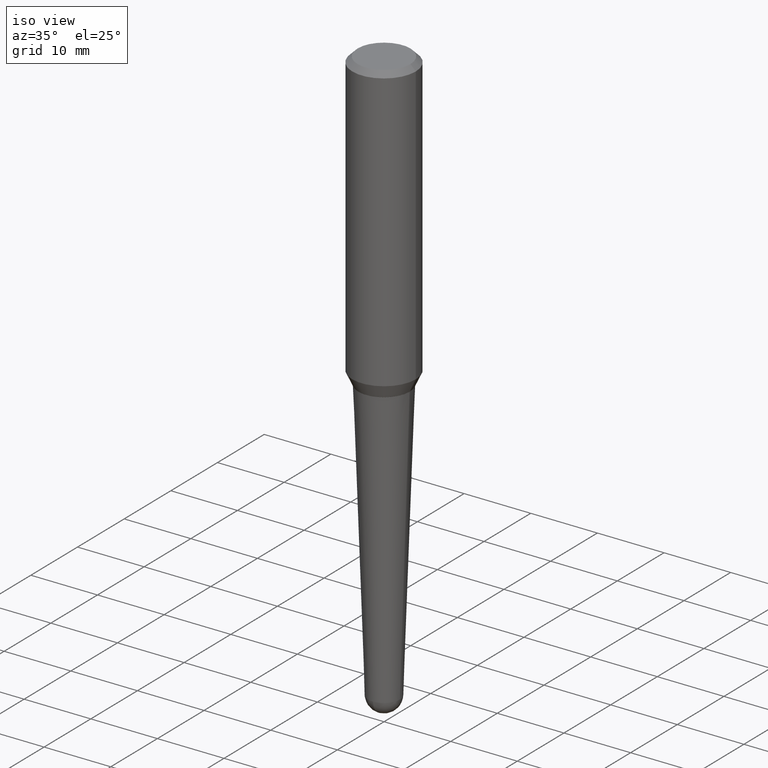
[diagram: clean part render]
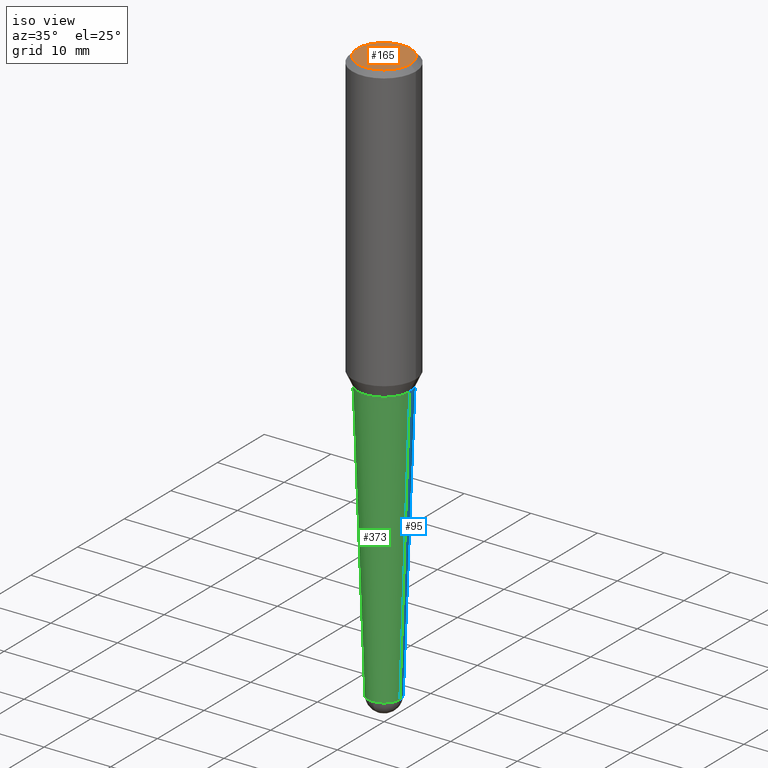
[diagram: same view with three faces highlighted in distinct colors, each labeled with its STEP entity id]
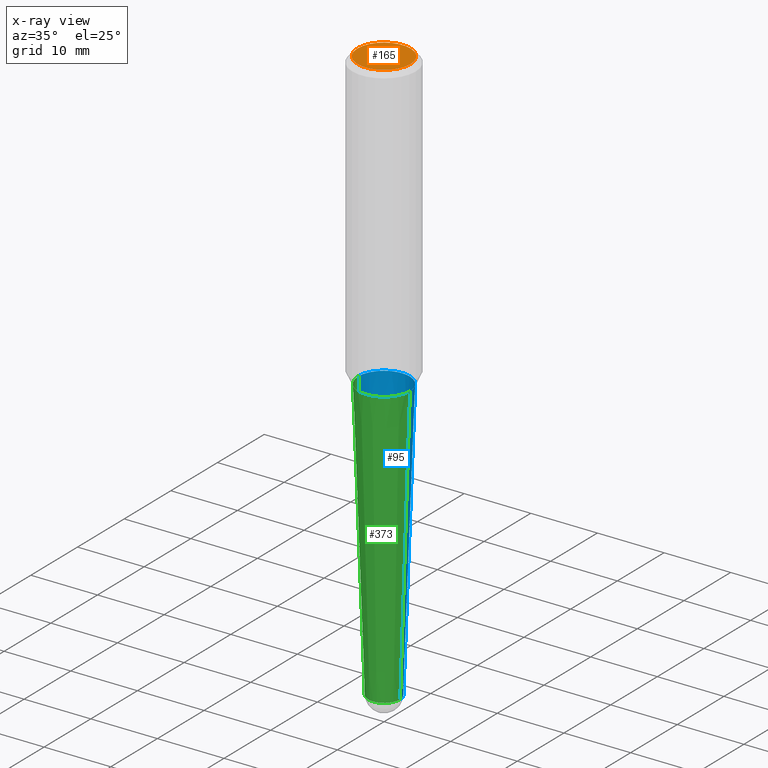
[diagram: x-ray of the same camera — body ghosted, the three highlighted faces saturated]
A machine part, iso view with three faces highlighted in distinct colors.
The next image is the same camera in x-ray (body ghosted, the three faces saturated) — at least one of them is partly hidden behind the body in this view.
Their STEP definitions:

[orange] entity #165 — the highlighted planar face has unit normal (0, -0, -1).
#2 = DIRECTION ( 'NONE',  ( -2.445468806185136597E-29, 3.491481338843145583E-15, 1.000000000000000000 ) ) ;
#61 = DIRECTION ( 'NONE',  ( 2.438088387897960049E-29, -3.491481338843145188E-15, -1.000000000000000000 ) ) ;
#81 = ORIENTED_EDGE ( 'NONE', *, *, #357, .T. ) ;
#94 = FACE_OUTER_BOUND ( 'NONE', #393, .T. ) ;
#103 = ORIENTED_EDGE ( 'NONE', *, *, #262, .T. ) ;
#105 = AXIS2_PLACEMENT_3D ( 'NONE', #347, #2, #241 ) ;
#109 = CARTESIAN_POINT ( 'NONE',  ( 1.878434762360922027E-44, -2.681907003855234996E-30, -7.681286948375465785E-16 ) ) ;
#152 = CARTESIAN_POINT ( 'NONE',  ( -0.1562500000000006106, 1.145642314307903724E-15, -7.681286948375542698E-16 ) ) ;
#156 = DIRECTION ( 'NONE',  ( -1.000000000000000000, 6.982962677686265922E-15, -4.876176775795935793E-29 ) ) ;
#165 = ADVANCED_FACE ( 'NONE', ( #94 ), #232, .F. ) ;
#188 = VERTEX_POINT ( 'NONE', #152 ) ;
#199 = CIRCLE ( 'NONE', #461, 0.1562500000000006106 ) ;
#206 = VERTEX_POINT ( 'NONE', #384 ) ;
#221 = AXIS2_PLACEMENT_3D ( 'NONE', #372, #61, #156 ) ;
#232 = PLANE ( 'NONE',  #221 ) ;
#241 = DIRECTION ( 'NONE',  ( 1.000000000000000000, -6.982962677686267499E-15, 4.891558762689325657E-29 ) ) ;
#246 = DIRECTION ( 'NONE',  ( -2.445468806185136597E-29, 3.491481338843145583E-15, 1.000000000000000000 ) ) ;
#262 = EDGE_CURVE ( 'NONE', #206, #188, #330, .T. ) ;
#330 = CIRCLE ( 'NONE', #105, 0.1562500000000006106 ) ;
#347 = CARTESIAN_POINT ( 'NONE',  ( 1.878434762360922027E-44, -2.681907003855234996E-30, -7.681286948375465785E-16 ) ) ;
#357 = EDGE_CURVE ( 'NONE', #188, #206, #199, .T. ) ;
#372 = CARTESIAN_POINT ( 'NONE',  ( 9.392173811804610133E-45, -1.340953501927617498E-30, -3.840643474187732892E-16 ) ) ;
#384 = CARTESIAN_POINT ( 'NONE',  ( 0.1562500000000006106, -1.233702489286409496E-15, -7.681286948375383940E-16 ) ) ;
#386 = DIRECTION ( 'NONE',  ( 1.000000000000000000, -6.982962677686267499E-15, 4.891558762689325657E-29 ) ) ;
#393 = EDGE_LOOP ( 'NONE', ( #81, #103 ) ) ;
#461 = AXIS2_PLACEMENT_3D ( 'NONE', #109, #246, #386 ) ;

[blue] entity #95 — the highlighted conical surface has half-angle 2 deg.
#3 = ORIENTED_EDGE ( 'NONE', *, *, #294, .T. ) ;
#4 = DIRECTION ( 'NONE',  ( -2.445468806185136597E-29, 3.491481338843145583E-15, 1.000000000000000000 ) ) ;
#30 = CIRCLE ( 'NONE', #284, 0.09374285957439164318 ) ;
#35 = DIRECTION ( 'NONE',  ( 0.03489949670250093450, 3.245652539804591788E-15, 0.9993908270190957621 ) ) ;
#40 = CARTESIAN_POINT ( 'NONE',  ( 8.337761267772230699E-29, -1.190411335467757546E-14, -3.409473572790693741 ) ) ;
#45 = ORIENTED_EDGE ( 'NONE', *, *, #394, .T. ) ;
#48 = EDGE_CURVE ( 'NONE', #326, #423, #249, .T. ) ;
#57 = CARTESIAN_POINT ( 'NONE',  ( 8.337761267772230699E-29, -1.190411335467757546E-14, -3.409473572790693741 ) ) ;
#67 = DIRECTION ( 'NONE',  ( -2.445468806185136597E-29, 3.491481338843145583E-15, 1.000000000000000000 ) ) ;
#78 = CARTESIAN_POINT ( 'NONE',  ( 4.279570410823988484E-29, -6.110092342975504671E-15, -1.750000000000000000 ) ) ;
#95 = ADVANCED_FACE ( 'NONE', ( #448 ), #350, .T. ) ;
#99 = VERTEX_POINT ( 'NONE', #193 ) ;
#100 = VERTEX_POINT ( 'NONE', #403 ) ;
#119 = CARTESIAN_POINT ( 'NONE',  ( -0.1516929536874624396, -5.032249079889307672E-15, -1.750000000000000000 ) ) ;
#135 = CARTESIAN_POINT ( 'NONE',  ( 0.1516929536874624396, -7.169358577043047653E-15, -1.750000000000000000 ) ) ;
#136 = DIRECTION ( 'NONE',  ( 1.000000000000000000, -6.982962677686274599E-15, 0.000000000000000000 ) ) ;
#143 = DIRECTION ( 'NONE',  ( -2.445468806185136597E-29, 3.491481338843145583E-15, 1.000000000000000000 ) ) ;
#144 = DIRECTION ( 'NONE',  ( 1.000000000000000000, -6.982962677686274599E-15, 0.000000000000000000 ) ) ;
#154 = VECTOR ( 'NONE', #35, 39.37007874015748143 ) ;
#170 = CARTESIAN_POINT ( 'NONE',  ( -0.09374285957439164318, -1.123803027567794397E-14, -3.409473572790693741 ) ) ;
#179 = EDGE_LOOP ( 'NONE', ( #400, #45, #322, #427, #3 ) ) ;
#193 = CARTESIAN_POINT ( 'NONE',  ( 6.546028897076445980E-16, 0.09374285957437972217, -3.409473572790694185 ) ) ;
#239 = CARTESIAN_POINT ( 'NONE',  ( 0.09374285957439164318, -9.864037410714093178E-15, -3.409473572790693741 ) ) ;
#249 = CIRCLE ( 'NONE', #269, 0.1516929536874624673 ) ;
#260 = DIRECTION ( 'NONE',  ( 1.000000000000000000, -6.982962677686274599E-15, 0.000000000000000000 ) ) ;
#269 = AXIS2_PLACEMENT_3D ( 'NONE', #78, #143, #320 ) ;
#276 = EDGE_CURVE ( 'NONE', #387, #326, #279, .T. ) ;
#279 = LINE ( 'NONE', #382, #154 ) ;
#284 = AXIS2_PLACEMENT_3D ( 'NONE', #40, #4, #144 ) ;
#294 = EDGE_CURVE ( 'NONE', #387, #99, #411, .T. ) ;
#305 = AXIS2_PLACEMENT_3D ( 'NONE', #378, #67, #136 ) ;
#308 = DIRECTION ( 'NONE',  ( -0.03489949670250093450, 3.737330261384646804E-15, 0.9993908270190957621 ) ) ;
#320 = DIRECTION ( 'NONE',  ( 1.000000000000000000, -6.982962677686268288E-15, 0.000000000000000000 ) ) ;
#322 = ORIENTED_EDGE ( 'NONE', *, *, #48, .F. ) ;
#326 = VERTEX_POINT ( 'NONE', #135 ) ;
#328 = DIRECTION ( 'NONE',  ( -2.445468806185136597E-29, 3.491481338843145583E-15, 1.000000000000000000 ) ) ;
#342 = VECTOR ( 'NONE', #308, 39.37007874015748143 ) ;
#343 = LINE ( 'NONE', #170, #342 ) ;
#350 = CONICAL_SURFACE ( 'NONE', #399, 0.09374285957439164318, 0.03490658503988655625 ) ;
#378 = CARTESIAN_POINT ( 'NONE',  ( 8.337761267772230699E-29, -1.190411335467757546E-14, -3.409473572790693741 ) ) ;
#382 = CARTESIAN_POINT ( 'NONE',  ( 0.09374285957439164318, -1.255871624438513713E-14, -3.409473572790693741 ) ) ;
#383 = EDGE_CURVE ( 'NONE', #99, #100, #30, .T. ) ;
#387 = VERTEX_POINT ( 'NONE', #239 ) ;
#394 = EDGE_CURVE ( 'NONE', #100, #423, #343, .T. ) ;
#399 = AXIS2_PLACEMENT_3D ( 'NONE', #57, #328, #260 ) ;
#400 = ORIENTED_EDGE ( 'NONE', *, *, #383, .T. ) ;
#403 = CARTESIAN_POINT ( 'NONE',  ( -0.09374285957439164318, -8.135139677783627397E-15, -3.409473572790693741 ) ) ;
#411 = CIRCLE ( 'NONE', #305, 0.09374285957439164318 ) ;
#423 = VERTEX_POINT ( 'NONE', #119 ) ;
#427 = ORIENTED_EDGE ( 'NONE', *, *, #276, .F. ) ;
#448 = FACE_OUTER_BOUND ( 'NONE', #179, .T. ) ;

[green] entity #373 — the highlighted conical surface has half-angle 2 deg.
#6 = CIRCLE ( 'NONE', #233, 0.09374285957439164318 ) ;
#32 = CARTESIAN_POINT ( 'NONE',  ( 8.337761267772230699E-29, -1.190411335467757546E-14, -3.409473572790693741 ) ) ;
#35 = DIRECTION ( 'NONE',  ( 0.03489949670250093450, 3.245652539804591788E-15, 0.9993908270190957621 ) ) ;
#38 = EDGE_LOOP ( 'NONE', ( #391, #82, #145, #216, #213 ) ) ;
#42 = DIRECTION ( 'NONE',  ( -2.445468806185136597E-29, 3.491481338843145583E-15, 1.000000000000000000 ) ) ;
#46 = CIRCLE ( 'NONE', #419, 0.1516929536874624673 ) ;
#52 = DIRECTION ( 'NONE',  ( 1.000000000000000000, -6.982962677686274599E-15, 0.000000000000000000 ) ) ;
#69 = VERTEX_POINT ( 'NONE', #293 ) ;
#72 = DIRECTION ( 'NONE',  ( 1.000000000000000000, -6.982962677686274599E-15, 0.000000000000000000 ) ) ;
#82 = ORIENTED_EDGE ( 'NONE', *, *, #316, .T. ) ;
#100 = VERTEX_POINT ( 'NONE', #403 ) ;
#104 = DIRECTION ( 'NONE',  ( -2.445468806185136597E-29, 3.491481338843145583E-15, 1.000000000000000000 ) ) ;
#106 = CARTESIAN_POINT ( 'NONE',  ( 8.337761267772230699E-29, -1.190411335467757546E-14, -3.409473572790693741 ) ) ;
#113 = CONICAL_SURFACE ( 'NONE', #166, 0.09374285957439164318, 0.03490658503988655625 ) ;
#119 = CARTESIAN_POINT ( 'NONE',  ( -0.1516929536874624396, -5.032249079889307672E-15, -1.750000000000000000 ) ) ;
#135 = CARTESIAN_POINT ( 'NONE',  ( 0.1516929536874624396, -7.169358577043047653E-15, -1.750000000000000000 ) ) ;
#145 = ORIENTED_EDGE ( 'NONE', *, *, #184, .T. ) ;
#154 = VECTOR ( 'NONE', #35, 39.37007874015748143 ) ;
#166 = AXIS2_PLACEMENT_3D ( 'NONE', #106, #353, #72 ) ;
#170 = CARTESIAN_POINT ( 'NONE',  ( -0.09374285957439164318, -1.123803027567794397E-14, -3.409473572790693741 ) ) ;
#178 = DIRECTION ( 'NONE',  ( 1.000000000000000000, -6.982962677686268288E-15, 0.000000000000000000 ) ) ;
#184 = EDGE_CURVE ( 'NONE', #69, #387, #215, .T. ) ;
#212 = DIRECTION ( 'NONE',  ( 1.000000000000000000, -6.982962677686274599E-15, 0.000000000000000000 ) ) ;
#213 = ORIENTED_EDGE ( 'NONE', *, *, #234, .F. ) ;
#214 = CARTESIAN_POINT ( 'NONE',  ( 4.279570410823988484E-29, -6.110092342975504671E-15, -1.750000000000000000 ) ) ;
#215 = CIRCLE ( 'NONE', #369, 0.09374285957439164318 ) ;
#216 = ORIENTED_EDGE ( 'NONE', *, *, #276, .T. ) ;
#233 = AXIS2_PLACEMENT_3D ( 'NONE', #32, #42, #212 ) ;
#234 = EDGE_CURVE ( 'NONE', #423, #326, #46, .T. ) ;
#239 = CARTESIAN_POINT ( 'NONE',  ( 0.09374285957439164318, -9.864037410714093178E-15, -3.409473572790693741 ) ) ;
#275 = FACE_OUTER_BOUND ( 'NONE', #38, .T. ) ;
#276 = EDGE_CURVE ( 'NONE', #387, #326, #279, .T. ) ;
#279 = LINE ( 'NONE', #382, #154 ) ;
#293 = CARTESIAN_POINT ( 'NONE',  ( -6.660830789995453065E-16, -0.09374285957440314787, -3.409473572790693296 ) ) ;
#308 = DIRECTION ( 'NONE',  ( -0.03489949670250093450, 3.737330261384646804E-15, 0.9993908270190957621 ) ) ;
#316 = EDGE_CURVE ( 'NONE', #100, #69, #6, .T. ) ;
#326 = VERTEX_POINT ( 'NONE', #135 ) ;
#342 = VECTOR ( 'NONE', #308, 39.37007874015748143 ) ;
#343 = LINE ( 'NONE', #170, #342 ) ;
#353 = DIRECTION ( 'NONE',  ( -2.445468806185136597E-29, 3.491481338843145583E-15, 1.000000000000000000 ) ) ;
#363 = DIRECTION ( 'NONE',  ( -2.445468806185136597E-29, 3.491481338843145583E-15, 1.000000000000000000 ) ) ;
#369 = AXIS2_PLACEMENT_3D ( 'NONE', #414, #363, #52 ) ;
#373 = ADVANCED_FACE ( 'NONE', ( #275 ), #113, .T. ) ;
#382 = CARTESIAN_POINT ( 'NONE',  ( 0.09374285957439164318, -1.255871624438513713E-14, -3.409473572790693741 ) ) ;
#387 = VERTEX_POINT ( 'NONE', #239 ) ;
#391 = ORIENTED_EDGE ( 'NONE', *, *, #394, .F. ) ;
#394 = EDGE_CURVE ( 'NONE', #100, #423, #343, .T. ) ;
#403 = CARTESIAN_POINT ( 'NONE',  ( -0.09374285957439164318, -8.135139677783627397E-15, -3.409473572790693741 ) ) ;
#414 = CARTESIAN_POINT ( 'NONE',  ( 8.337761267772230699E-29, -1.190411335467757546E-14, -3.409473572790693741 ) ) ;
#419 = AXIS2_PLACEMENT_3D ( 'NONE', #214, #104, #178 ) ;
#423 = VERTEX_POINT ( 'NONE', #119 ) ;